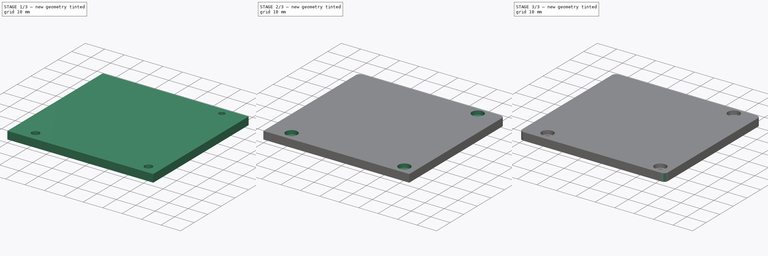
[diagram: build sequence overview — one tinted view per stage of 3, left to right]
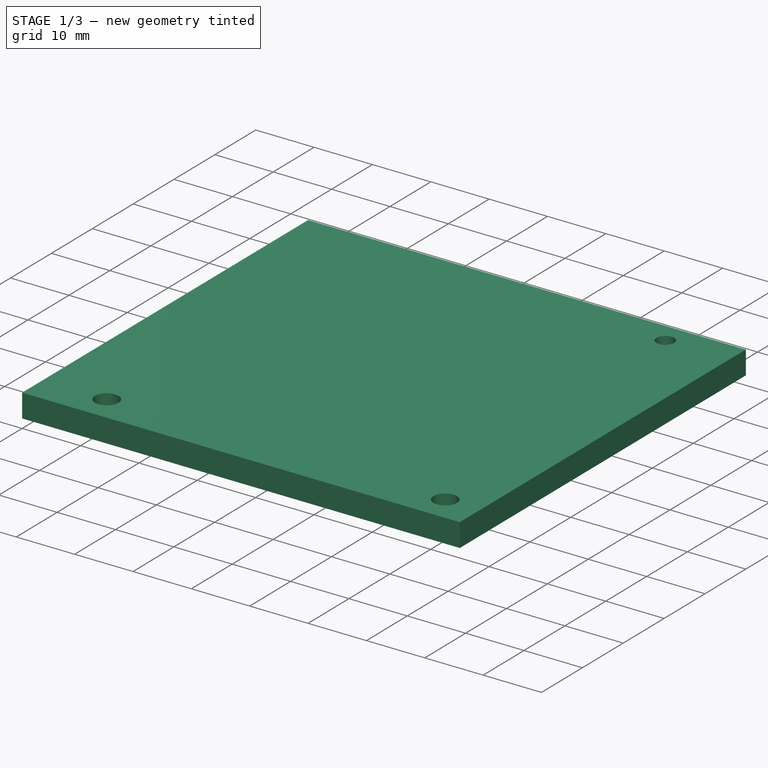
[diagram: stage 1 of 3 — iso view after this stage's code; geometry added in this stage tinted green]
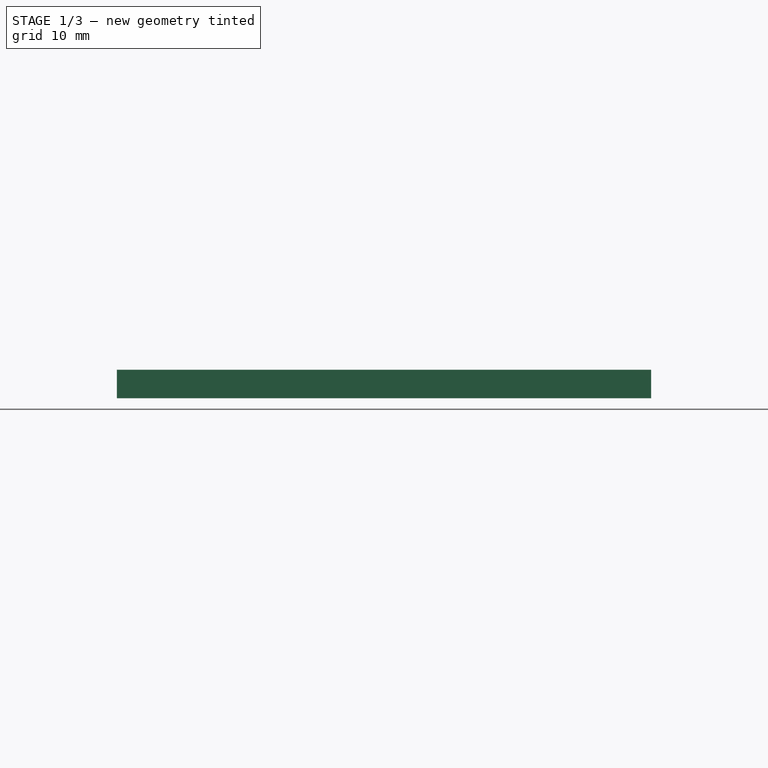
[diagram: stage 1 of 3 — front view after this stage's code; geometry added in this stage tinted green]
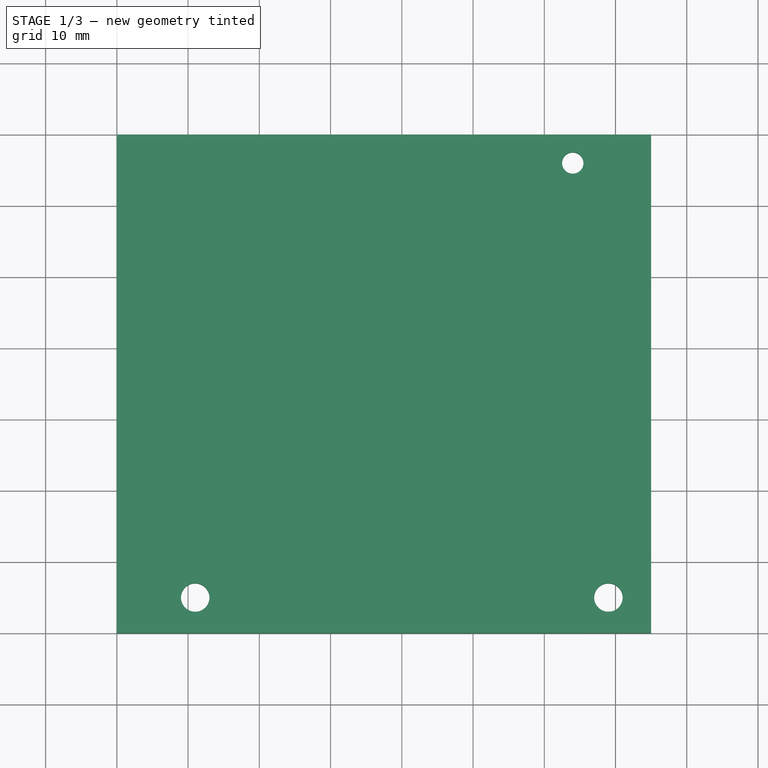
[diagram: stage 1 of 3 — top view after this stage's code; geometry added in this stage tinted green]
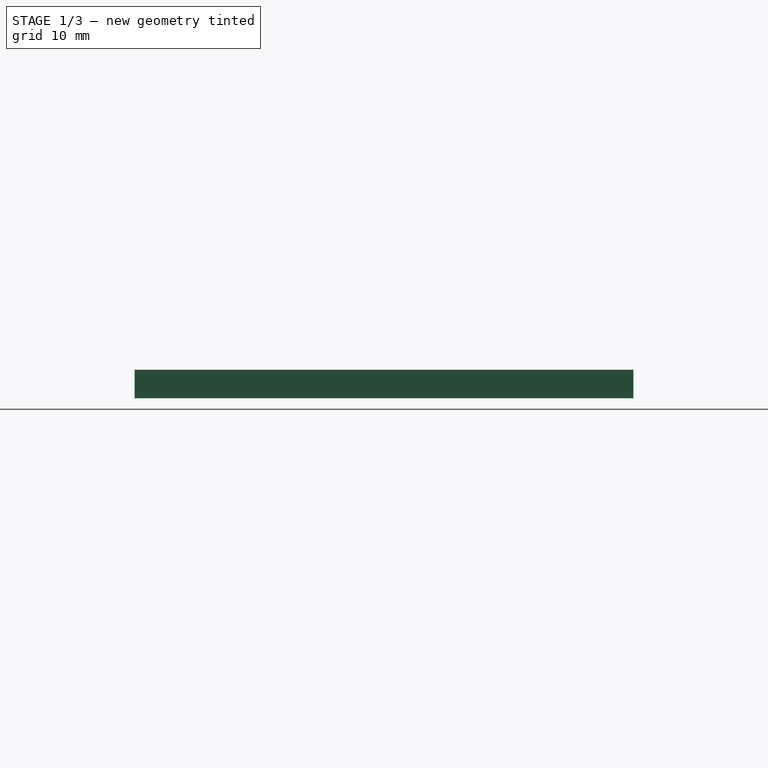
[diagram: stage 1 of 3 — right view after this stage's code; geometry added in this stage tinted green]
FCSTD DOCUMENT  (FreeCAD 0.16R6706 (Git))
Label: iROB-EA_TapaInferior
License: All rights reserved
LicenseURL: http://en.wikipedia.org/wiki/All_rights_reserved
objects: PartDesign::Fillet×4, Sketcher::SketchObject×3, PartDesign::Pocket×2, PartDesign::Pad×1
note: 13 computed .brp shape members not serialized (recipe doc carries the construction recipe); baked Part::Feature solids carry a one-line shape summary decoded from their .brp

FEATURE [Sketcher::SketchObject] Sketch  label="Base"
  sketch-geometry (7):
    g0: LineSegment StartX=0 StartY=70 StartZ=0 EndX=75 EndY=70 EndZ=0
    g1: LineSegment StartX=75 StartY=70 StartZ=0 EndX=75 EndY=0 EndZ=0
    g2: LineSegment StartX=75 StartY=0 StartZ=0 EndX=0 EndY=0 EndZ=0
    g3: LineSegment StartX=0 StartY=0 StartZ=0 EndX=0 EndY=70 EndZ=0
    g4: Circle CenterX=69 CenterY=5 CenterZ=0 NormalX=0 NormalY=0 NormalZ=1 Radius=2
    g5: Circle CenterX=11 CenterY=5 CenterZ=0 NormalX=0 NormalY=0 NormalZ=1 Radius=2
    g6: Circle CenterX=64 CenterY=66 CenterZ=0 NormalX=0 NormalY=0 NormalZ=1 Radius=1.5
  constraints (20):
    c: Coincident(g0,g1)
    c: Coincident(g1,g2)
    c: Coincident(g2,g3)
    c: Coincident(g3,g0)
    c: Horizontal(g0)
    c: Horizontal(g2)
    c: Vertical(g1)
    c: Vertical(g3)
    c: DistanceY(g1,g1) = 70
    c: DistanceX(g0,g0) = 75
    c: Coincident(g2,g-1)
    c: Radius(g4) = 2
    c: Radius(g5) = 2
    c: DistanceY(g4,g5) = 0
    c: DistanceX(g5,g4) = 58
    c: DistanceX(g5,g-1) = -11
    c: DistanceY(g-1,g5) = 5
    c: Radius(g6) = 1.5
    c: DistanceY(g4,g6) = 61
    c: DistanceX(g-1,g6) = 64
FEATURE [PartDesign::Pad] Pad
  Length = 4
  Length2 = 100
  Sketch = -> Sketch
  Type = 0
FEATURE [Sketcher::SketchObject] Sketch001  label="Carril"
  Placement = pos=(0,0,0) rot=(1,0,0;3.14159rad)
  Support = -> Pad [Face8]
  sketch-geometry (8):
    g0: LineSegment StartX=3 StartY=-30 StartZ=0 EndX=33 EndY=-30 EndZ=0
    g1: LineSegment StartX=33 StartY=-30 StartZ=0 EndX=33 EndY=-40 EndZ=0
    g2: LineSegment StartX=33 StartY=-40 StartZ=0 EndX=3 EndY=-40 EndZ=0
    g3: LineSegment StartX=3 StartY=-40 StartZ=0 EndX=3 EndY=-30 EndZ=0
    g4: LineSegment StartX=3 StartY=-40 StartZ=0 EndX=13 EndY=-40 EndZ=0
    g5: LineSegment StartX=13 StartY=-40 StartZ=0 EndX=13 EndY=-70 EndZ=0
    g6: LineSegment StartX=13 StartY=-70 StartZ=0 EndX=3 EndY=-70 EndZ=0
    g7: LineSegment StartX=3 StartY=-70 StartZ=0 EndX=3 EndY=-40 EndZ=0
  constraints (23):
    c: Coincident(g0,g1)
    c: Coincident(g1,g2)
    c: Coincident(g2,g3)
    c: Coincident(g3,g0)
    c: Horizontal(g0)
    c: Horizontal(g2)
    c: Vertical(g1)
    c: Vertical(g3)
    c: DistanceX(g0,g0) = 30
    c: DistanceY(g1,g1) = 10
    c: DistanceX(g0,g-1) = -3
    c: DistanceY(g0,g-1) = 30
    c: Coincident(g4,g5)
    c: Coincident(g5,g6)
    c: Coincident(g6,g7)
    c: Coincident(g7,g4)
    c: Horizontal(g4)
    c: Horizontal(g6)
    c: Vertical(g5)
    c: Vertical(g7)
    c: DistanceY(g5,g5) = 30
    c: DistanceX(g4,g4) = 10
    c: Coincident(g4,g2)
FEATURE [PartDesign::Pocket] Pocket
  Length = 2
  Sketch = -> Sketch001
  Type = 0
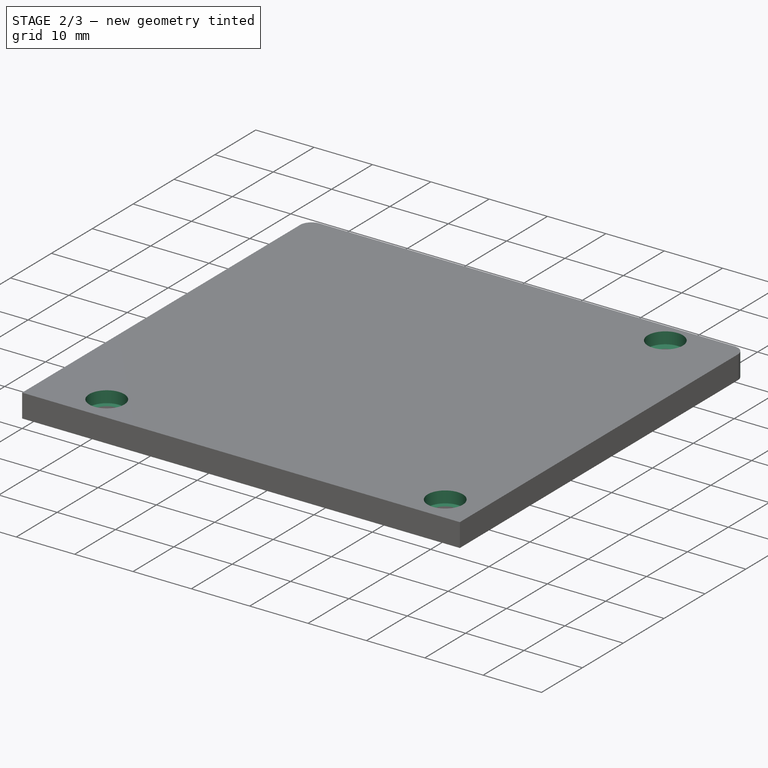
[diagram: stage 2 of 3 — iso view after this stage's code; geometry added in this stage tinted green]
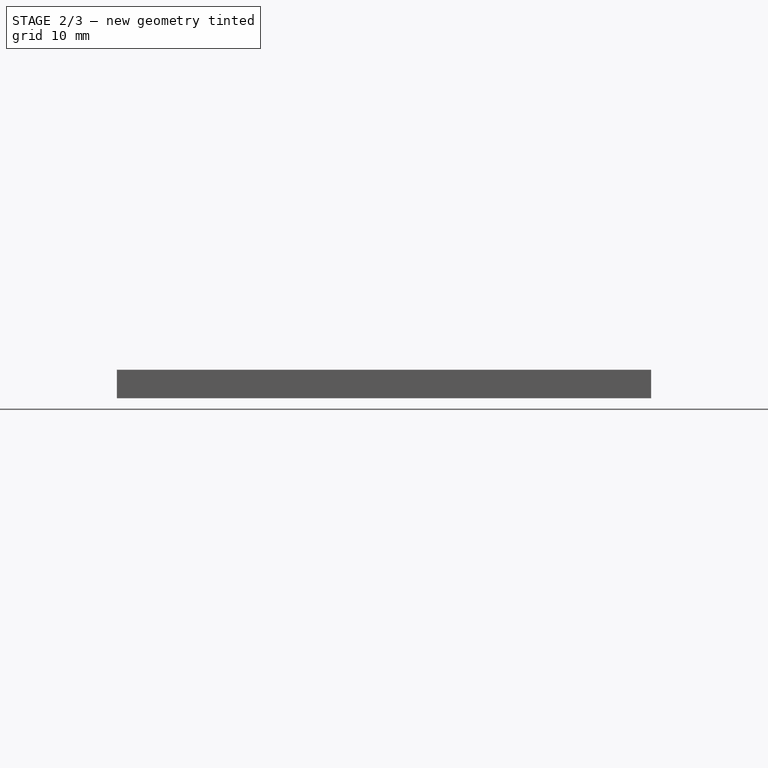
[diagram: stage 2 of 3 — front view after this stage's code; geometry added in this stage tinted green]
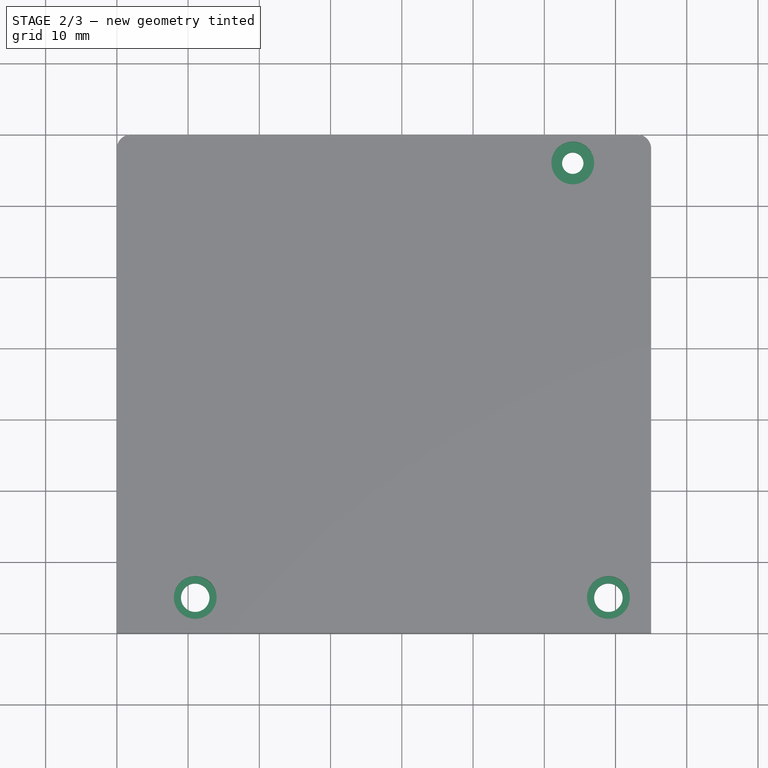
[diagram: stage 2 of 3 — top view after this stage's code; geometry added in this stage tinted green]
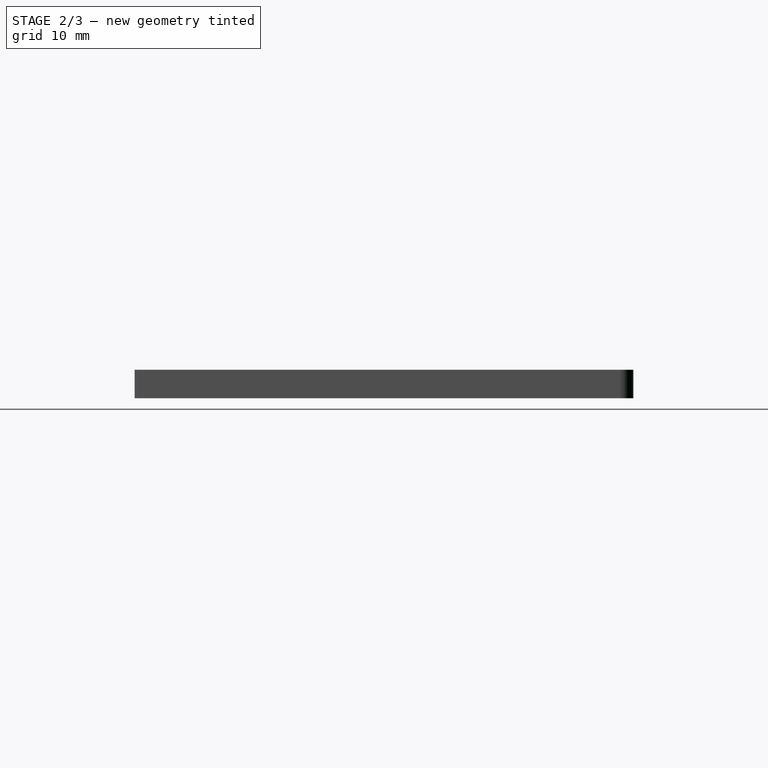
[diagram: stage 2 of 3 — right view after this stage's code; geometry added in this stage tinted green]
FEATURE [Sketcher::SketchObject] Sketch002  label="Tornillos_Cabeza"
  Placement = pos=(0,0,4) rot=(0,0,1;0rad)
  Support = -> Pocket [Face7]
  sketch-geometry (3):
    g0: Circle CenterX=11 CenterY=5 CenterZ=0 NormalX=0 NormalY=0 NormalZ=1 Radius=3
    g1: Circle CenterX=69 CenterY=5 CenterZ=0 NormalX=0 NormalY=0 NormalZ=1 Radius=3
    g2: Circle CenterX=64 CenterY=66 CenterZ=0 NormalX=0 NormalY=0 NormalZ=1 Radius=3
  constraints (9):
    c: Radius(g0) = 3
    c: DistanceX(g0) = 11
    c: DistanceY(g-1,g0) = 5
    c: Radius(g1) = 3
    c: DistanceX(g1,g0) = -58
    c: DistanceY(g0,g1) = 0
    c: Radius(g2) = 3
    c: DistanceX(g2,g1) = 5
    c: DistanceY(g-1,g2) = 66
FEATURE [PartDesign::Pocket] Pocket001
  Length = 2
  Sketch = -> Sketch002
  Type = 0
FEATURE [PartDesign::Fillet] Fillet  label="Borde_0"
  Base = -> Pocket001 [Edge8]
  Radius = 2
FEATURE [PartDesign::Fillet] Fillet001  label="Borde_1"
  Base = -> Fillet [Edge6]
  Radius = 2
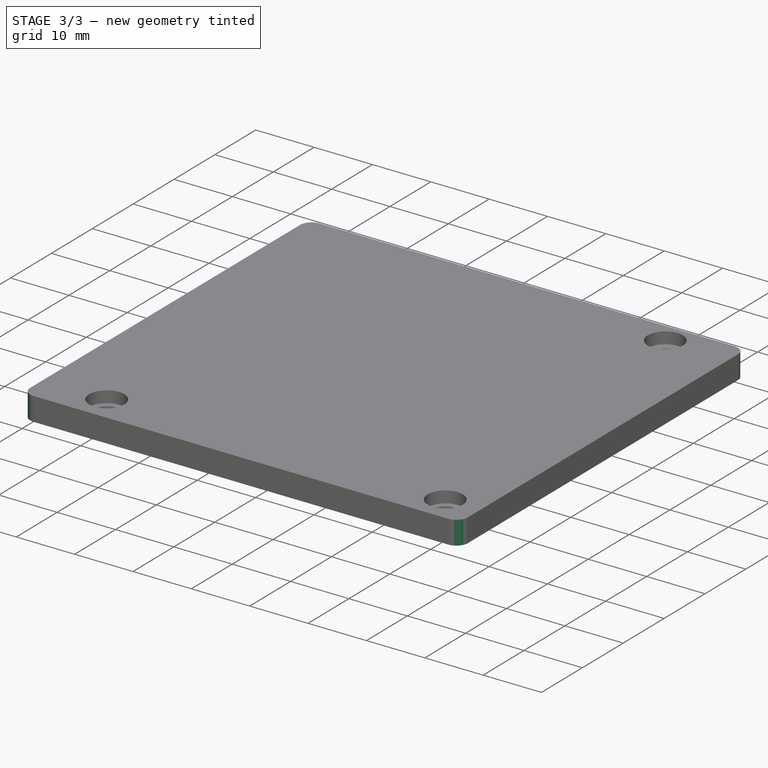
[diagram: stage 3 of 3 — iso view after this stage's code; geometry added in this stage tinted green]
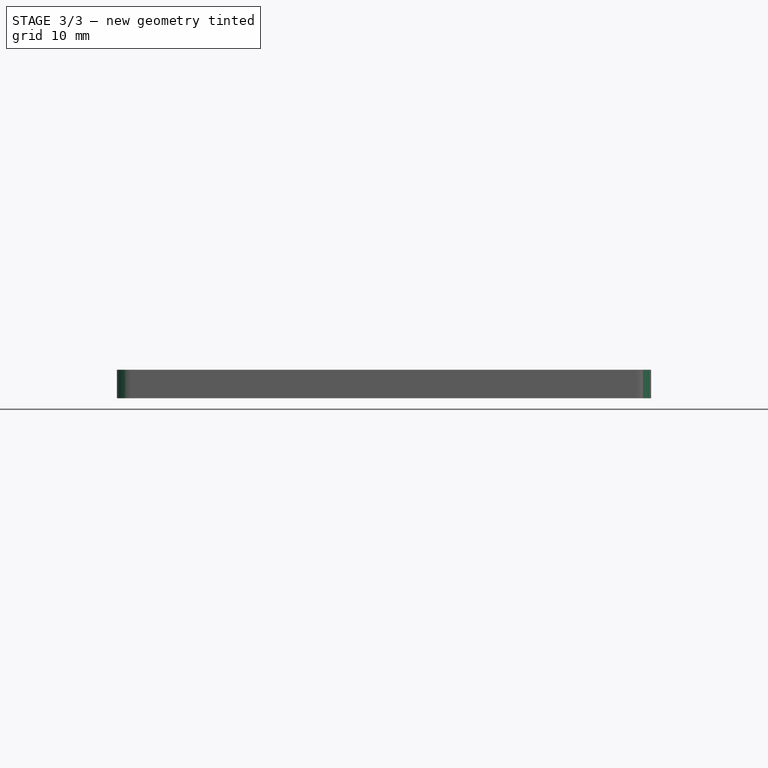
[diagram: stage 3 of 3 — front view after this stage's code; geometry added in this stage tinted green]
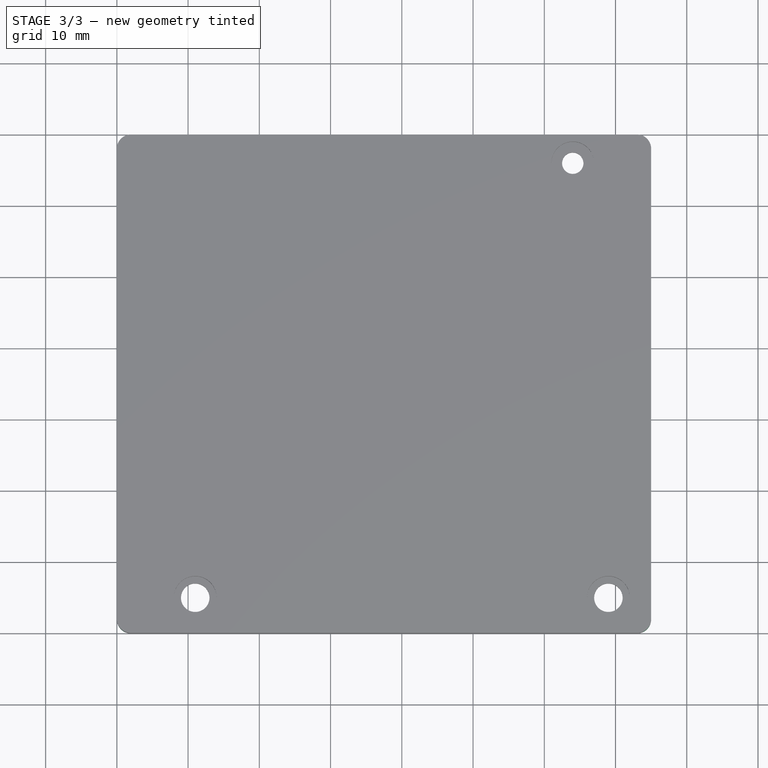
[diagram: stage 3 of 3 — top view after this stage's code; geometry added in this stage tinted green]
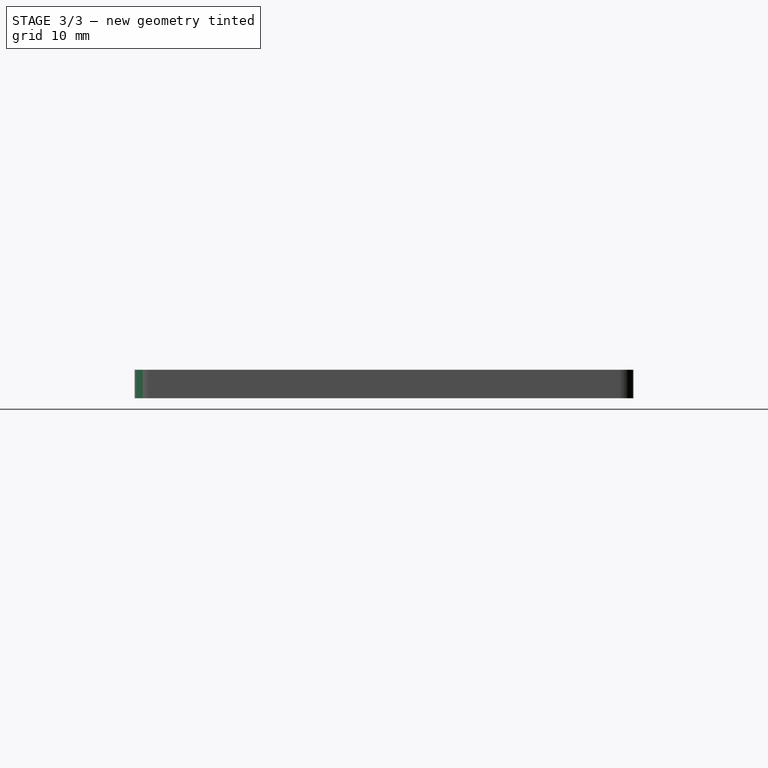
[diagram: stage 3 of 3 — right view after this stage's code; geometry added in this stage tinted green]
FEATURE [PartDesign::Fillet] Fillet002  label="Borde_2"
  Base = -> Fillet001 [Edge39]
  Radius = 2
FEATURE [PartDesign::Fillet] Fillet003  label="Borde_3"
  Base = -> Fillet002 [Edge19]
  Radius = 2
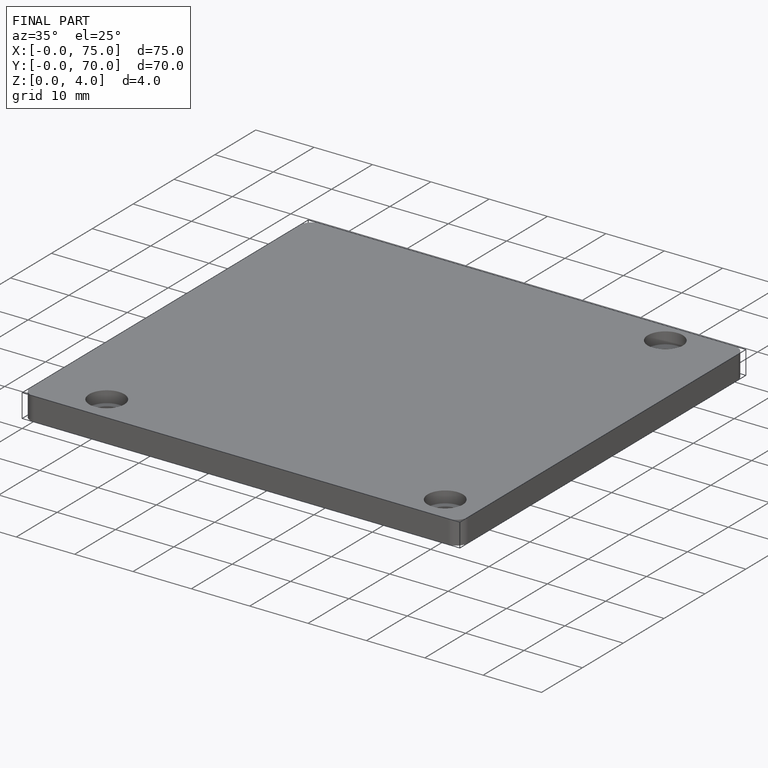
[diagram: finished part — iso view with bounding-box wireframe]
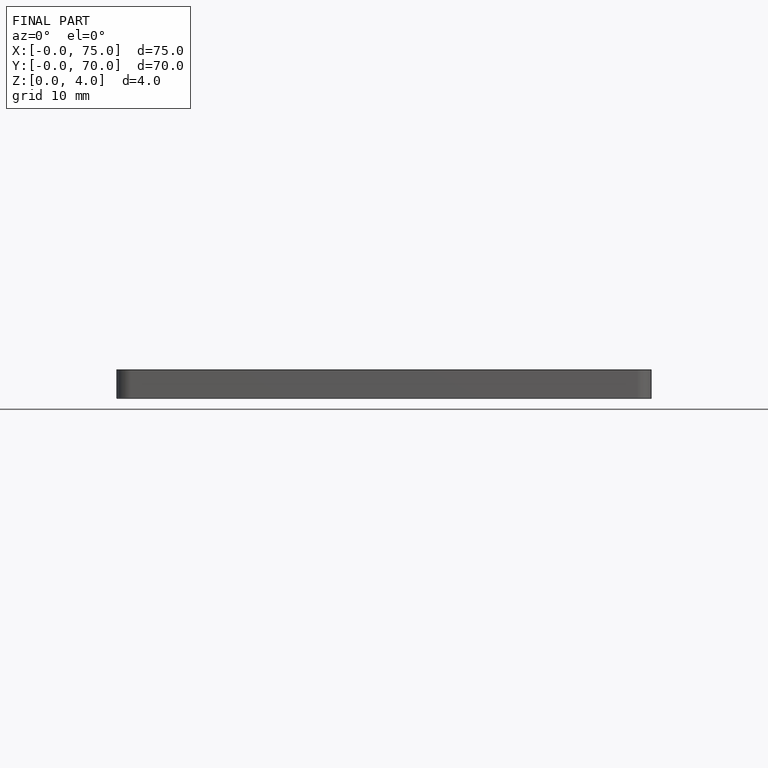
[diagram: finished part — front view with bounding-box wireframe]
